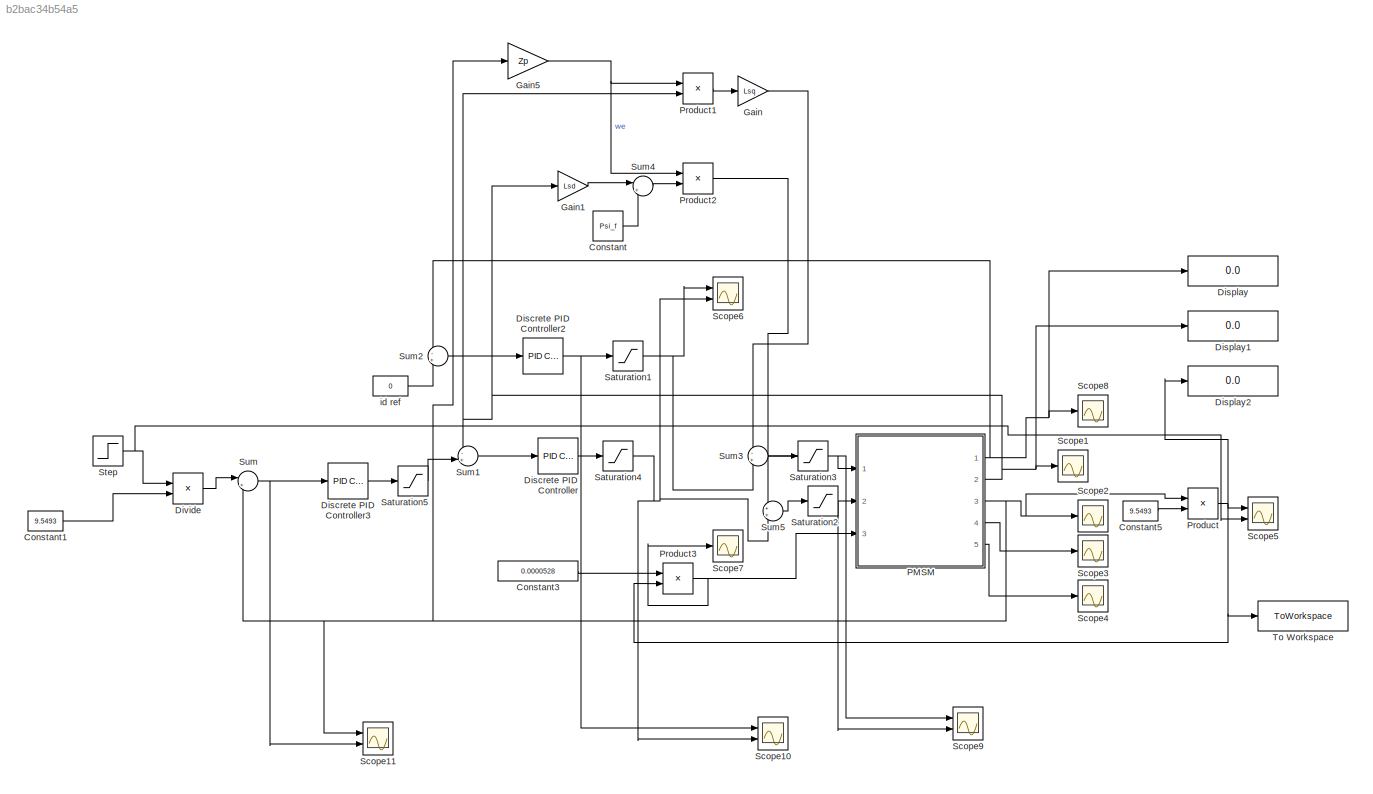
MODEL slx_b2bac34b54a5
KIND model
CONFIG AbsTol = auto
CONFIG EnableMultiTasking = off
CONFIG FixedStep = 1e-6
CONFIG MaxStep = 1e-4
CONFIG MinStep = auto
CONFIG RelTol = 1e-4
CONFIG SampleTimeConstraint = Unconstrained
CONFIG SolverName = VariableStepAuto
CONFIG StartTime = 0.0
CONFIG StopTime = 0.5
BLOCK [Constant] Constant
  Value = Psi_f
BLOCK [Constant] Constant1
  Value = 9.5493
BLOCK [Constant] Constant3
  Value = 0.0000528
BLOCK [Constant] Constant5
  Value = 9.5493
BLOCK [Reference] Discrete PID Controller  REF=pid_lib/PID Controller
  Ports = [1, 1]
  SourceBlock = pid_lib/PID Controller
  SourceProductBaseCode = SL
  SourceType = PID 1dof
BLOCK [Reference] Discrete PID Controller2  REF=pid_lib/PID Controller
  Ports = [1, 1]
  SourceBlock = pid_lib/PID Controller
  SourceProductBaseCode = SL
  SourceType = PID 1dof
BLOCK [Reference] Discrete PID Controller3  REF=pid_lib/PID Controller
  Ports = [1, 1]
  SourceBlock = pid_lib/PID Controller
  SourceProductBaseCode = SL
  SourceType = PID 1dof
BLOCK [Display] Display
  Decimation = 1
  Ports = [1]
BLOCK [Display] Display1
  Decimation = 1
  Ports = [1]
BLOCK [Display] Display2
  Decimation = 1
  Ports = [1]
BLOCK [Product] Divide
  Inputs = */
  Ports = [2, 1]
BLOCK [Gain] Gain
  Gain = Lsq
BLOCK [Gain] Gain1
  Gain = Lsd
BLOCK [Gain] Gain5
  Gain = Zp
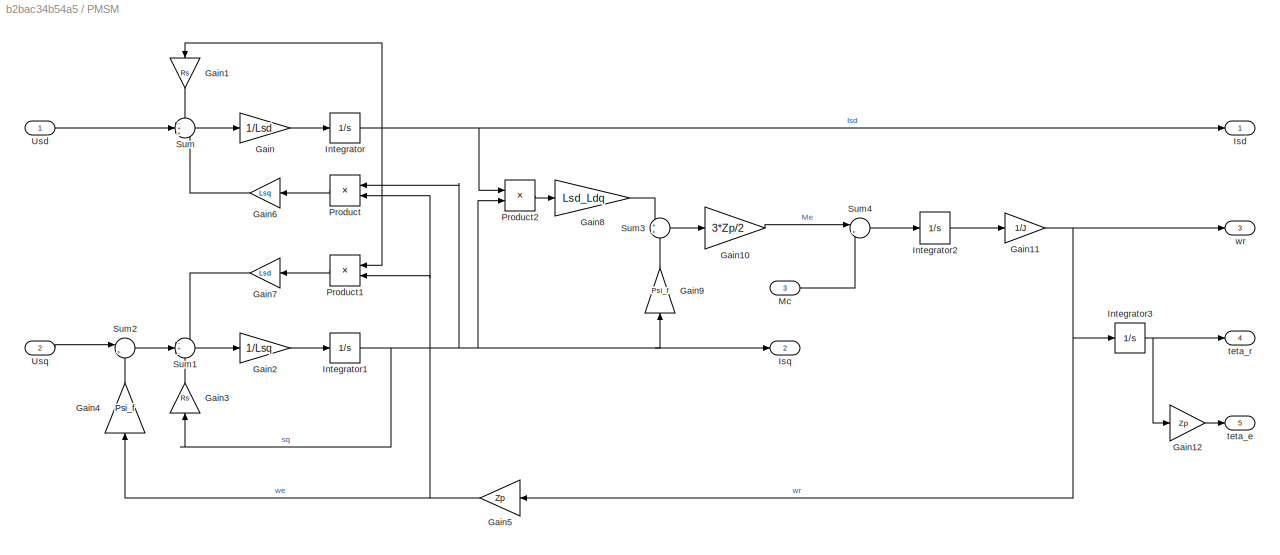
BLOCK [SubSystem] PMSM 
  Ports = [3, 5]
  RequestExecContextInheritance = off
BLOCK [Gain] PMSM /Gain
  Gain = 1/Lsd
BLOCK [Gain] PMSM /Gain1
  Gain = Rs
  NameLocation = left
BLOCK [Gain] PMSM /Gain10
  Gain = 3*Zp/2
BLOCK [Gain] PMSM /Gain11
  Gain = 1/J
BLOCK [Gain] PMSM /Gain12
  Gain = Zp
BLOCK [Gain] PMSM /Gain2
  Gain = 1/Lsq
BLOCK [Gain] PMSM /Gain3
  Gain = Rs
  NameLocation = right
BLOCK [Gain] PMSM /Gain4
  Gain = Psi_f
  NameLocation = right
BLOCK [Gain] PMSM /Gain5
  Gain = Zp
  NameLocation = top
BLOCK [Gain] PMSM /Gain6
  Gain = Lsq
  NameLocation = top
BLOCK [Gain] PMSM /Gain7
  Gain = Lsd
  NameLocation = top
BLOCK [Gain] PMSM /Gain8
  Gain = Lsd_Ldq
BLOCK [Gain] PMSM /Gain9
  Gain = Psi_f
  NameLocation = right
BLOCK [Integrator] PMSM /Integrator
  Ports = [1, 1]
BLOCK [Integrator] PMSM /Integrator1
  Ports = [1, 1]
BLOCK [Integrator] PMSM /Integrator2
  Ports = [1, 1]
BLOCK [Integrator] PMSM /Integrator3
  Ports = [1, 1]
BLOCK [Outport] PMSM /Isd
  VectorParamsAs1DForOutWhenUnconnected = off
BLOCK [Outport] PMSM /Isq
  Port = 2
  VectorParamsAs1DForOutWhenUnconnected = off
BLOCK [Inport] PMSM /Mc
  Port = 3
BLOCK [Product] PMSM /Product
  NameLocation = top
  Ports = [2, 1]
BLOCK [Product] PMSM /Product1
  NameLocation = top
  Ports = [2, 1]
BLOCK [Product] PMSM /Product2
  Ports = [2, 1]
BLOCK [Sum] PMSM /Sum
  Inputs = -++
  Ports = [3, 1]
BLOCK [Sum] PMSM /Sum1
  Inputs = -+-
  Ports = [3, 1]
BLOCK [Sum] PMSM /Sum2
  Inputs = |+-
  Ports = [2, 1]
BLOCK [Sum] PMSM /Sum3
  Ports = [2, 1]
BLOCK [Sum] PMSM /Sum4
  Inputs = |+-
  Ports = [2, 1]
BLOCK [Inport] PMSM /Usd
BLOCK [Inport] PMSM /Usq
  Port = 2
BLOCK [Outport] PMSM /teta_e
  Port = 5
  VectorParamsAs1DForOutWhenUnconnected = off
BLOCK [Outport] PMSM /teta_r
  Port = 4
  VectorParamsAs1DForOutWhenUnconnected = off
BLOCK [Outport] PMSM /wr
  Port = 3
  VectorParamsAs1DForOutWhenUnconnected = off
BLOCK [Product] Product
  Ports = [2, 1]
BLOCK [Product] Product1
  Ports = [2, 1]
BLOCK [Product] Product2
  Ports = [2, 1]
BLOCK [Product] Product3
  Ports = [2, 1]
BLOCK [Saturate] Saturation1
  LowerLimit = -10000
  UpperLimit = 10000
BLOCK [Saturate] Saturation2
  LowerLimit = -24
  UpperLimit = 24
BLOCK [Saturate] Saturation3
  LowerLimit = -24
  UpperLimit = 24
BLOCK [Saturate] Saturation4
  LowerLimit = -10000
  UpperLimit = 10000
BLOCK [Saturate] Saturation5
  LowerLimit = -10000
  UpperLimit = 10000
BLOCK [Scope] Scope1
  Floating = off
  NumInputPorts = 1
  Ports = [1]
  ScopeSpecificationString = Simulink.scopes.TimeScopeBlockCfg('CurrentConfiguration', extmgr.ConfigurationSet(extmgr.Configuration('Core','General UI',true),extmgr.Configuration('Core','Source UI',true),extmgr.Configuration('Sources','WiredSimulink',true,'DataLoggingVariableName','ScopeData1'),extmgr.Configuration('Visuals','Time Domain',true,'SerializedDisplays',{struct('MinYLimReal','-1.68655','MaxYLimReal','15.17893','YLa...<+1445ch>
BLOCK [Scope] Scope10
  Floating = off
  NumInputPorts = 2
  Ports = [2]
  ScopeSpecificationString = Simulink.scopes.TimeScopeBlockCfg('CurrentConfiguration', extmgr.ConfigurationSet(extmgr.Configuration('Core','General UI',true),extmgr.Configuration('Core','Source UI',true),extmgr.Configuration('Sources','WiredSimulink',true,'DataLoggingVariableName','ScopeData3'),extmgr.Configuration('Visuals','Time Domain',true,'SerializedDisplays',{struct('MinYLimReal','-159.07321','MaxYLimReal','37.87321','Y...<+2117ch>
BLOCK [Scope] Scope11
  Floating = off
  NumInputPorts = 2
  Ports = [2]
  ScopeSpecificationString = Simulink.scopes.TimeScopeBlockCfg('CurrentConfiguration', extmgr.ConfigurationSet(extmgr.Configuration('Core','General UI',true),extmgr.Configuration('Core','Source UI',true),extmgr.Configuration('Sources','WiredSimulink',true,'DataLoggingVariableName','ScopeData1'),extmgr.Configuration('Visuals','Time Domain',true,'SerializedDisplays',{struct('MinYLimReal','-19.57019','MaxYLimReal','176.13172','Y...<+2087ch>
BLOCK [Scope] Scope2
  Floating = off
  NumInputPorts = 1
  Ports = [1]
  ScopeSpecificationString = Simulink.scopes.TimeScopeBlockCfg('CurrentConfiguration', extmgr.ConfigurationSet(extmgr.Configuration('Core','General UI',true),extmgr.Configuration('Core','Source UI',true),extmgr.Configuration('Sources','WiredSimulink',true,'DataLoggingVariableName','ScopeData2'),extmgr.Configuration('Visuals','Time Domain',true,'SerializedDisplays',{struct('MinYLimReal','-3.00864','MaxYLimReal','11.19372','YLa...<+1441ch>
BLOCK [Scope] Scope3
  Floating = off
  NumInputPorts = 1
  Ports = [1]
  ScopeSpecificationString = Simulink.scopes.TimeScopeBlockCfg('CurrentConfiguration', extmgr.ConfigurationSet(extmgr.Configuration('Core','General UI',true),extmgr.Configuration('Core','Source UI',true),extmgr.Configuration('Sources','WiredSimulink',true,'DataLoggingVariableName','ScopeData3'),extmgr.Configuration('Visuals','Time Domain',true,'SerializedDisplays',{struct('MinYLimReal','-0.65101','MaxYLimReal','5.8591','YLabe...<+1362ch>
BLOCK [Scope] Scope4
  Floating = off
  NumInputPorts = 1
  Ports = [1]
  ScopeSpecificationString = Simulink.scopes.TimeScopeBlockCfg('CurrentConfiguration', extmgr.ConfigurationSet(extmgr.Configuration('Core','General UI',true),extmgr.Configuration('Core','Source UI',true),extmgr.Configuration('Sources','WiredSimulink',true,'DataLoggingVariableName','ScopeData4'),extmgr.Configuration('Visuals','Time Domain',true,'SerializedDisplays',{struct('MinYLimReal','-2.60404','MaxYLimReal','23.43639','YLa...<+1370ch>
BLOCK [Scope] Scope5
  Floating = off
  NumInputPorts = 2
  Ports = [2]
  ScopeSpecificationString = Simulink.scopes.TimeScopeBlockCfg('CurrentConfiguration', extmgr.ConfigurationSet(extmgr.Configuration('Core','General UI',true),extmgr.Configuration('Core','Source UI',true),extmgr.Configuration('Sources','WiredSimulink',true),extmgr.Configuration('Visuals','Time Domain',true,'SerializedDisplays',{struct('MinYLimReal','-187.5','MaxYLimReal','1687.5','YLabelReal','','MinYLimMag',' 0.00000','MaxYLi...<+1399ch>
BLOCK [Scope] Scope6
  Floating = off
  NumInputPorts = 2
  Ports = [2]
  ScopeSpecificationString = Simulink.scopes.TimeScopeBlockCfg('CurrentConfiguration', extmgr.ConfigurationSet(extmgr.Configuration('Core','General UI',true),extmgr.Configuration('Core','Source UI',true),extmgr.Configuration('Sources','WiredSimulink',true,'DataLoggingVariableName','ScopeData1'),extmgr.Configuration('Visuals','Time Domain',true,'SerializedDisplays',{struct('MinYLimReal','-1.00000','MaxYLimReal','1.00000','YLab...<+2131ch>
BLOCK [Scope] Scope7
  Floating = off
  NumInputPorts = 1
  Ports = [1]
  ScopeSpecificationString = Simulink.scopes.TimeScopeBlockCfg('CurrentConfiguration', extmgr.ConfigurationSet(extmgr.Configuration('Core','General UI',true),extmgr.Configuration('Core','Source UI',true),extmgr.Configuration('Sources','WiredSimulink',true,'DataLoggingVariableName','ScopeData1'),extmgr.Configuration('Visuals','Time Domain',true,'SerializedDisplays',{struct('MinYLimReal','-0.0142','MaxYLimReal','0.12776','YLabe...<+1436ch>
BLOCK [Scope] Scope8
  Floating = off
  NumInputPorts = 1
  Ports = [1]
  ScopeSpecificationString = Simulink.scopes.TimeScopeBlockCfg('CurrentConfiguration', extmgr.ConfigurationSet(extmgr.Configuration('Core','General UI',true),extmgr.Configuration('Core','Source UI',true),extmgr.Configuration('Sources','WiredSimulink',true,'DataLoggingVariableName','ScopeData7'),extmgr.Configuration('Visuals','Time Domain',true,'SerializedDisplays',{struct('MinYLimReal','0.0000000000000000048','MaxYLimReal','0...<+1549ch>
BLOCK [Scope] Scope9
  Floating = off
  NumInputPorts = 2
  Ports = [2]
  ScopeSpecificationString = Simulink.scopes.TimeScopeBlockCfg('CurrentConfiguration', extmgr.ConfigurationSet(extmgr.Configuration('Core','General UI',true),extmgr.Configuration('Core','Source UI',true),extmgr.Configuration('Sources','WiredSimulink',true,'DataLoggingVariableName','ScopeData2'),extmgr.Configuration('Visuals','Time Domain',true,'SerializedDisplays',{struct('MinYLimReal','-28.54169','MaxYLimReal','16.87521','YL...<+2095ch>
BLOCK [Step] Step
  After = refSpeed
  SampleTime = 0
  Time = 0
BLOCK [Sum] Sum
  Inputs = |+-
  Ports = [2, 1]
BLOCK [Sum] Sum1
  Inputs = -+
  Ports = [2, 1]
BLOCK [Sum] Sum2
  Inputs = -+
  Ports = [2, 1]
BLOCK [Sum] Sum3
  Inputs = -+
  Ports = [2, 1]
BLOCK [Sum] Sum4
  Inputs = |++
  Ports = [2, 1]
BLOCK [Sum] Sum5
  Ports = [2, 1]
BLOCK [ToWorkspace] To Workspace
  MaxDataPoints = inf
  Ports = [1]
  SampleTime = -1
  SaveFormat = Structure With Time
  VariableName = rotorSpeed_rpm
BLOCK [Constant] id ref
  Value = 0
LINE Constant1:1 -> Divide:2
LINE Constant3:1 -> Product3:1
LINE Constant5:1 -> Product:2
LINE Constant:1 -> Sum4:2
NET Discrete PID Controller2:1 -> Saturation1:1, Scope10:1
LINE Discrete PID Controller3:1 -> Saturation5:1
LINE Discrete PID Controller:1 -> Saturation4:1
LINE Divide:1 -> Sum:1
LINE Gain1:1 -> Sum4:1
NET Gain5:1 -> Product1:1, Product2:1
LINE Gain:1 -> Sum3:1
LINE PMSM /Gain10:1 -> PMSM /Sum4:1
NET PMSM /Gain11:1 -> PMSM /Gain5:1, PMSM /Integrator3:1, PMSM /wr:1
LINE PMSM /Gain12:1 -> PMSM /teta_e:1
LINE PMSM /Gain1:1 -> PMSM /Sum:1
LINE PMSM /Gain2:1 -> PMSM /Integrator1:1
LINE PMSM /Gain3:1 -> PMSM /Sum1:3
LINE PMSM /Gain4:1 -> PMSM /Sum2:2
NET PMSM /Gain5:1 -> PMSM /Gain4:1, PMSM /Product1:2, PMSM /Product:2
LINE PMSM /Gain6:1 -> PMSM /Sum:3
LINE PMSM /Gain7:1 -> PMSM /Sum1:1
LINE PMSM /Gain8:1 -> PMSM /Sum3:1
LINE PMSM /Gain9:1 -> PMSM /Sum3:2
LINE PMSM /Gain:1 -> PMSM /Integrator:1
NET PMSM /Integrator1:1 -> PMSM /Gain3:1, PMSM /Gain9:1, PMSM /Isq:1, PMSM /Product2:2, PMSM /Product:1
LINE PMSM /Integrator2:1 -> PMSM /Gain11:1
NET PMSM /Integrator3:1 -> PMSM /Gain12:1, PMSM /teta_r:1
NET PMSM /Integrator:1 -> PMSM /Gain1:1, PMSM /Isd:1, PMSM /Product1:1, PMSM /Product2:1
LINE PMSM /Mc:1 -> PMSM /Sum4:2
LINE PMSM /Product1:1 -> PMSM /Gain7:1
LINE PMSM /Product2:1 -> PMSM /Gain8:1
LINE PMSM /Product:1 -> PMSM /Gain6:1
LINE PMSM /Sum1:1 -> PMSM /Gain2:1
LINE PMSM /Sum2:1 -> PMSM /Sum1:2
LINE PMSM /Sum3:1 -> PMSM /Gain10:1
LINE PMSM /Sum4:1 -> PMSM /Integrator2:1
LINE PMSM /Sum:1 -> PMSM /Gain:1
LINE PMSM /Usd:1 -> PMSM /Sum:2
LINE PMSM /Usq:1 -> PMSM /Sum2:1
NET PMSM :1 -> Display:1, Scope8:1, Sum2:1
NET PMSM :2 -> Display1:1, Gain1:1, Product1:2, Scope1:1, Sum1:1
NET PMSM :3 -> Gain5:1, Product:1, Scope11:1, Scope2:1, Sum:2
LINE PMSM :4 -> Scope3:1
LINE PMSM :5 -> Scope4:1
LINE Product1:1 -> Gain:1
LINE Product2:1 -> Sum5:1
NET Product3:1 -> PMSM :3, Scope7:1
NET Product:1 -> Display2:1, Product3:2, Scope5:1, To Workspace:1
NET Saturation1:1 -> Scope6:1, Sum3:2
NET Saturation2:1 -> PMSM :2, Scope9:2
NET Saturation3:1 -> PMSM :1, Scope9:1
NET Saturation4:1 -> Scope10:2, Scope6:2, Sum5:2
LINE Saturation5:1 -> Sum1:2
NET Step:1 -> Divide:1, Scope5:2
LINE Sum1:1 -> Discrete PID Controller:1
LINE Sum2:1 -> Discrete PID Controller2:1
LINE Sum3:1 -> Saturation3:1
LINE Sum4:1 -> Product2:2
LINE Sum5:1 -> Saturation2:1
NET Sum:1 -> Discrete PID Controller3:1, Scope11:2
LINE id ref:1 -> Sum2:2
note: NET lines group one-source signal fan-out (src -> all destinations, sorted); 1:1 wires keep LINE
